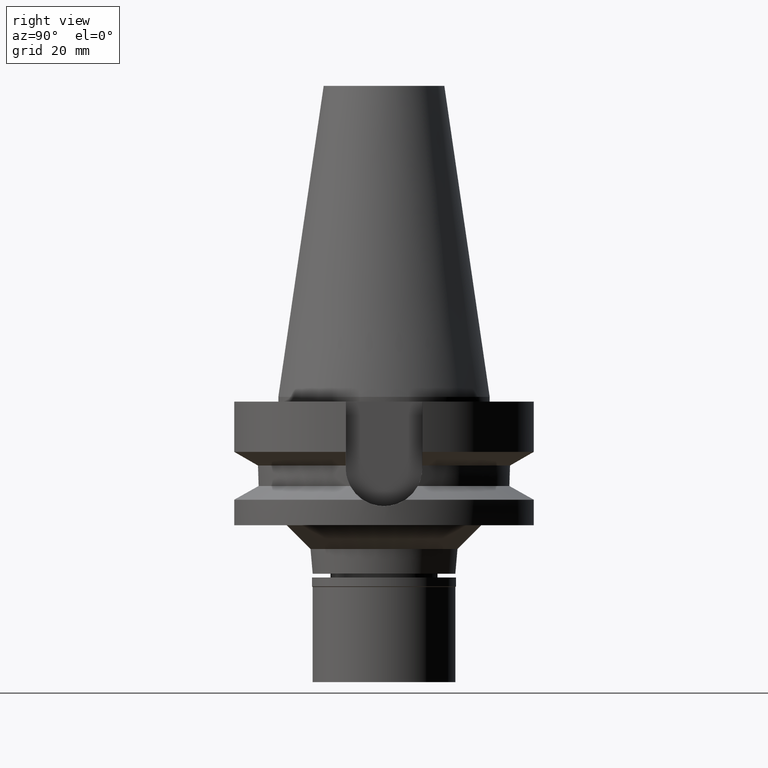
[diagram: clean part render]
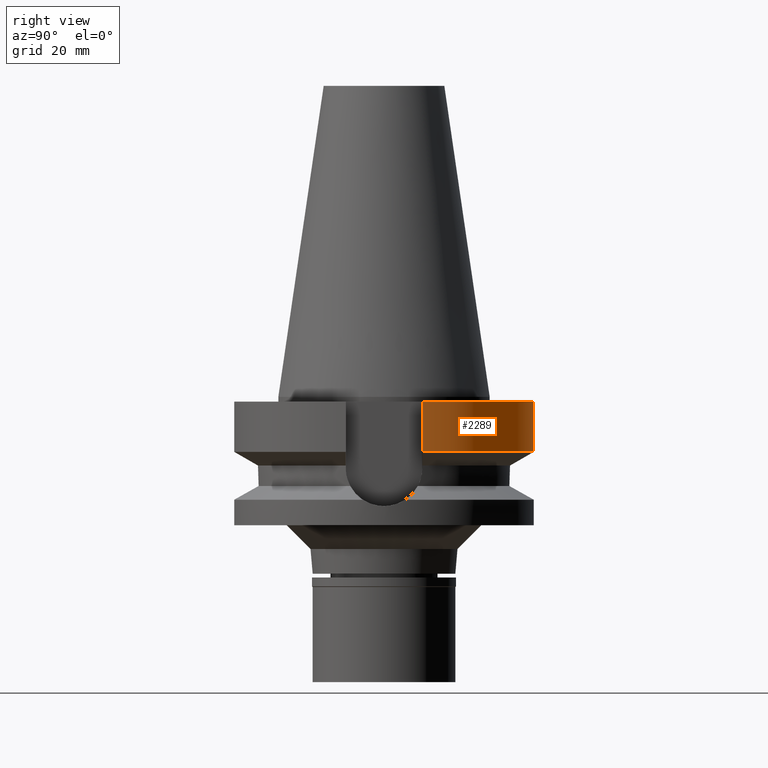
[diagram: same view with one face highlighted and labeled with its STEP entity id]
A machine part, right view. The second image highlights one B-rep face of the part: STEP entity #2289.
In plain terms, the highlighted cylindrical surface (partial cylindrical patch) has radius 31.5 mm, axis along (0, 0, -1).
Its self-contained STEP definition (entity closure, byte-faithful):
#71 = EDGE_CURVE ( 'NONE', #1666, #786, #592, .T. ) ;
#119 = DIRECTION ( 'NONE',  ( -1.855886769393989960E-08, 7.021044758621961613E-08, 0.9999999999999973355 ) ) ;
#144 = EDGE_CURVE ( 'NONE', #2332, #239, #1602, .T. ) ;
#239 = VERTEX_POINT ( 'NONE', #1117 ) ;
#366 = CARTESIAN_POINT ( 'NONE',  ( -30.45402272279000044, 8.050000000000000711, -1.000000000000000000 ) ) ;
#375 = ORIENTED_EDGE ( 'NONE', *, *, #602, .T. ) ;
#413 = DIRECTION ( 'NONE',  ( 1.044646301178018455E-07, 3.952004820192066242E-07, -0.9999999999999164002 ) ) ;
#592 = LINE ( 'NONE', #366, #1391 ) ;
#602 = EDGE_CURVE ( 'NONE', #2332, #786, #702, .T. ) ;
#609 = ORIENTED_EDGE ( 'NONE', *, *, #71, .F. ) ;
#652 = AXIS2_PLACEMENT_3D ( 'NONE', #1238, #2907, #776 ) ;
#655 = CYLINDRICAL_SURFACE ( 'NONE', #998, 31.50000000000000000 ) ;
#702 = CIRCLE ( 'NONE', #652, 31.50000000000000000 ) ;
#776 = DIRECTION ( 'NONE',  ( 0.0000000000000000000, 1.000000000000000000, 0.0000000000000000000 ) ) ;
#786 = VERTEX_POINT ( 'NONE', #1196 ) ;
#998 = AXIS2_PLACEMENT_3D ( 'NONE', #1311, #2537, #2523 ) ;
#1034 = CARTESIAN_POINT ( 'NONE',  ( -30.45402272279000044, 8.050000000000000711, -1.000000000000000000 ) ) ;
#1117 = CARTESIAN_POINT ( 'NONE',  ( 30.45402272279000044, 8.050000000000000711, -1.000000000000000000 ) ) ;
#1185 = ORIENTED_EDGE ( 'NONE', *, *, #144, .F. ) ;
#1196 = CARTESIAN_POINT ( 'NONE',  ( -30.45402161906999794, 8.050004175477999624, -11.56546804176000087 ) ) ;
#1211 = DIRECTION ( 'NONE',  ( 0.0000000000000000000, 1.000000000000000000, 0.0000000000000000000 ) ) ;
#1238 = CARTESIAN_POINT ( 'NONE',  ( 0.0000000000000000000, 1.065333950388000029E-14, -11.56550565266999975 ) ) ;
#1311 = CARTESIAN_POINT ( 'NONE',  ( 0.0000000000000000000, 2.098248593318999714E-14, 71.33499999999999375 ) ) ;
#1340 = CARTESIAN_POINT ( 'NONE',  ( 30.45402291886999890, 8.049999258190000617, -11.56551233397999923 ) ) ;
#1391 = VECTOR ( 'NONE', #413, 1000.000000000000114 ) ;
#1483 = EDGE_CURVE ( 'NONE', #1666, #239, #1853, .T. ) ;
#1602 = LINE ( 'NONE', #1340, #3039 ) ;
#1666 = VERTEX_POINT ( 'NONE', #1034 ) ;
#1810 = ORIENTED_EDGE ( 'NONE', *, *, #1483, .T. ) ;
#1846 = EDGE_LOOP ( 'NONE', ( #609, #1810, #1185, #375 ) ) ;
#1853 = CIRCLE ( 'NONE', #2403, 31.50000000000000000 ) ;
#1956 = DIRECTION ( 'NONE',  ( 0.0000000000000000000, 0.0000000000000000000, -1.000000000000000000 ) ) ;
#2289 = ADVANCED_FACE ( 'NONE', ( #2333 ), #655, .T. ) ;
#2320 = CARTESIAN_POINT ( 'NONE',  ( 30.45402291886999890, 8.049999258190000617, -11.56551233397999923 ) ) ;
#2332 = VERTEX_POINT ( 'NONE', #2320 ) ;
#2333 = FACE_OUTER_BOUND ( 'NONE', #1846, .T. ) ;
#2394 = CARTESIAN_POINT ( 'NONE',  ( 0.0000000000000000000, 2.098248593318999714E-14, -1.000000000000000000 ) ) ;
#2403 = AXIS2_PLACEMENT_3D ( 'NONE', #2394, #1956, #1211 ) ;
#2523 = DIRECTION ( 'NONE',  ( 0.0000000000000000000, -1.000000000000000000, 0.0000000000000000000 ) ) ;
#2537 = DIRECTION ( 'NONE',  ( 0.0000000000000000000, 0.0000000000000000000, -1.000000000000000000 ) ) ;
#2907 = DIRECTION ( 'NONE',  ( 0.0000000000000000000, 0.0000000000000000000, 1.000000000000000000 ) ) ;
#3039 = VECTOR ( 'NONE', #119, 1000.000000000000000 ) ;